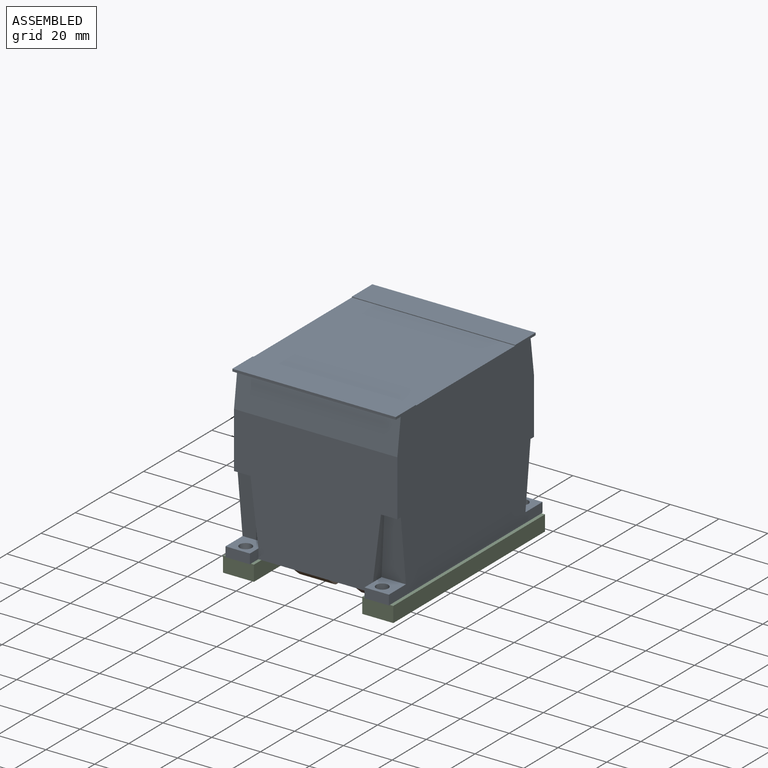
[diagram: assembled view]
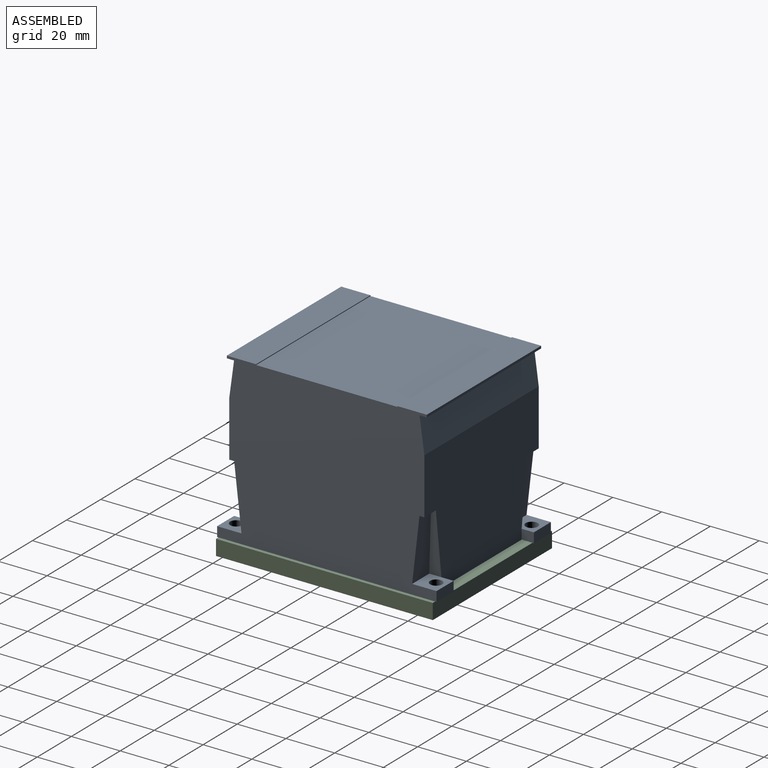
[diagram: assembled view, second angle]
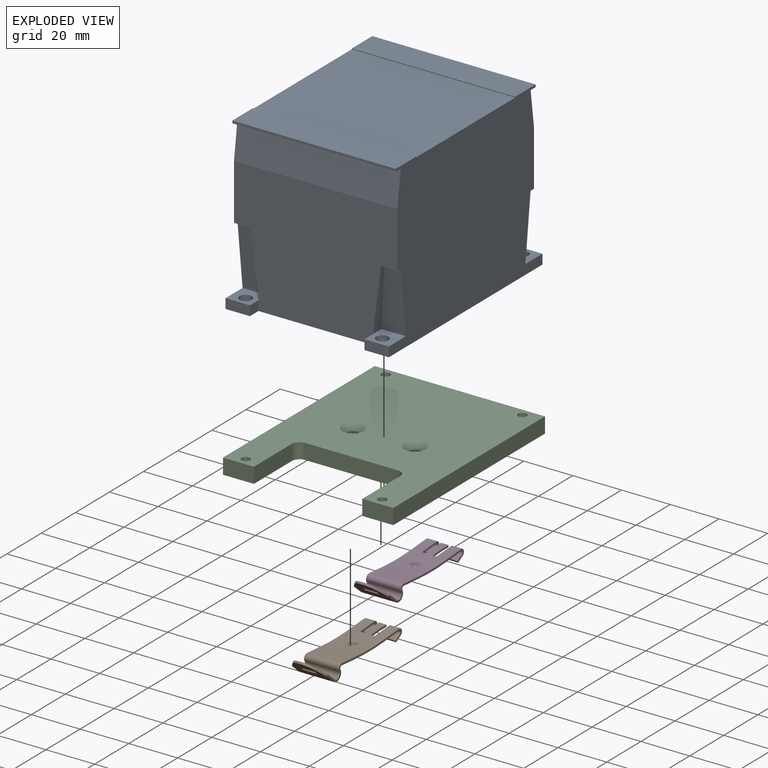
[diagram: exploded view]
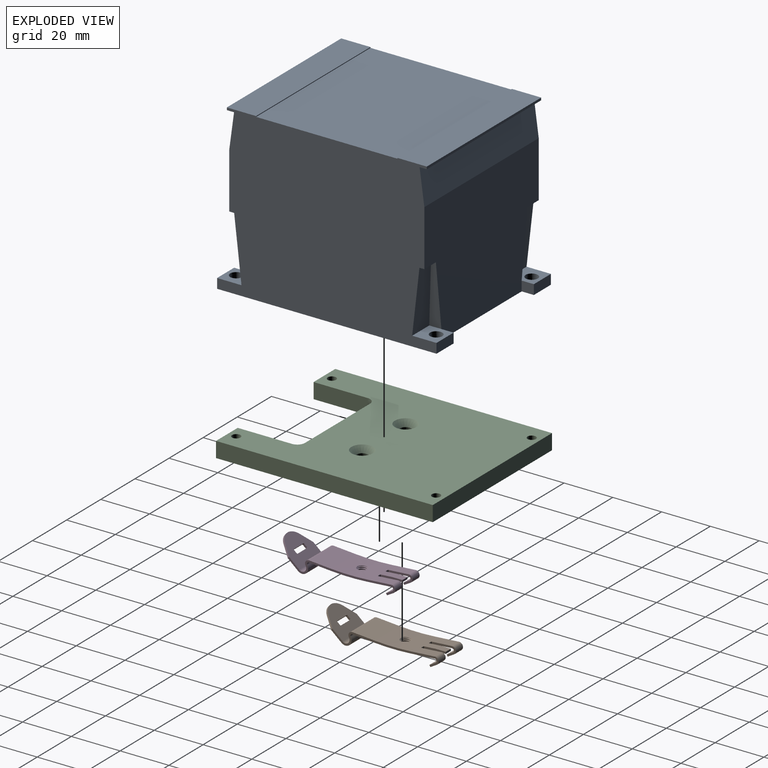
[diagram: exploded view, second angle]
ASSEMBLY  parts=4 mates=3
PART A: 44 faces, bbox 67x90x68.3 mm
  f0: plane 90x67mm, normal (0,0,1), area 5481.5mm2, adj f7,f8,f11,f14,f17,f18,f20,f21
  f1: plane 10x10mm, normal (0,0,-1), area 80.4mm2, adj f5,f8,f17,f26,f31,f35
  f2: plane 10x10mm, normal (0,0,-1), area 80.4mm2, adj f10,f11,f21,f27,f30,f34
  f3: plane 10x10mm, normal (0,0,-1), area 80.4mm2, adj f11,f15,f18,f25,f28,f33
  f4: plane 10x10mm, normal (0,0,-1), area 80.4mm2, adj f8,f13,f20,f24,f29,f32
  f5: plane 26x5mm, normal (-0.99,0,0.12), area 91.7mm2, adj f1,f6,f7,f31
  f6: plane 6.75x2mm, normal (0,0,1), area 13.5mm2, adj f5,f7,f8,f31
  f7: plane 67x53mm, normal (0,1,0), area 3035.5mm2, adj f0,f5,f6,f8,f9,f10,f11,f22
  f8: plane 90x68.3mm, normal (-1,0,0), area 5278.7mm2, adj f0,f1,f4,f6,f7,f12,f14,f17
  f9: plane 6.75x2mm, normal (0,0,1), area 13.5mm2, adj f7,f10,f11,f30
  f10: plane 26x5mm, normal (0.99,0,0.12), area 91.7mm2, adj f2,f7,f9,f30
  f11: plane 90x68.3mm, normal (1,0,0), area 5278.7mm2, adj f0,f2,f3,f7,f9,f14,f16,f18
  f12: plane 6.75x2mm, normal (0,0,1), area 13.5mm2, adj f8,f13,f14,f29
  f13: plane 26x5mm, normal (-0.99,0,0.12), area 91.7mm2, adj f4,f12,f14,f29
  f14: plane 67x53mm, normal (0,-1,0), area 3035.5mm2, adj f0,f8,f11,f12,f13,f15,f16,f19
  f15: plane 26x5mm, normal (0.99,0,0.12), area 91.7mm2, adj f3,f14,f16,f28
  f16: plane 6.75x2mm, normal (0,0,1), area 13.5mm2, adj f11,f14,f15,f28
  f17: plane 10x4mm, normal (0,1,0), area 40mm2, adj f0,f1,f8,f26
  f18: plane 10x4mm, normal (0,-1,0), area 40mm2, adj f0,f3,f11,f25
  f19: plane 67x14.3mm, normal (0,-0.99,-0.14), area 967mm2, adj f8,f11,f14,f38
  f20: plane 10x4mm, normal (0,-1,0), area 40mm2, adj f0,f4,f8,f24
  f21: plane 10x4mm, normal (0,1,0), area 40mm2, adj f0,f2,f11,f27
  f22: plane 67x14.3mm, normal (0,0.99,-0.14), area 967mm2, adj f7,f8,f11,f43
  f23: plane 67x58mm, normal (0,0,-1), area 3886mm2, adj f8,f11,f39,f42
  f24: plane 5x4mm, normal (1,0,0), area 20mm2, adj f0,f4,f14,f20
  f25: plane 5x4mm, normal (-1,0,0), area 20mm2, adj f0,f3,f14,f18
  f26: plane 5x4mm, normal (1,0,0), area 20mm2, adj f0,f1,f7,f17
  f27: plane 5x4mm, normal (-1,0,0), area 20mm2, adj f0,f2,f7,f21
  f28: plane 26x10mm, normal (0,-0.99,0.11), area 219.2mm2, adj f3,f11,f15,f16
  f29: plane 26x10mm, normal (0,-0.99,0.11), area 219.2mm2, adj f4,f8,f12,f13
  f30: plane 26x10mm, normal (0,0.99,0.11), area 219.2mm2, adj f2,f9,f10,f11
  f31: plane 26x10mm, normal (0,0.99,0.11), area 219.2mm2, adj f1,f5,f6,f8
  f32: cylinder r=2.5mm len=5mm, axis (0,0,-1), area 62.8mm2, adj f0,f4
  f33: cylinder r=2.5mm len=5mm, axis (0,0,-1), area 62.8mm2, adj f0,f3
  f34: cylinder r=2.5mm len=5mm, axis (0,0,-1), area 62.8mm2, adj f0,f2
  f35: cylinder r=2.5mm len=5mm, axis (0,0,-1), area 62.8mm2, adj f0,f1
  f36: plane 67x12mm, normal (0,0,-1), area 804mm2, adj f8,f11,f37,f39
  f37: plane 67x1mm, normal (0,-1,0), area 67mm2, adj f8,f11,f36,f38
  f38: plane 67x2.95mm, normal (0,0,1), area 197.9mm2, adj f8,f11,f19,f37
  f39: plane 67x0.3mm, normal (0,1,0), area 20.1mm2, adj f8,f11,f23,f36
  f40: plane 67x1mm, normal (0,1,0), area 67mm2, adj f8,f11,f41,f43
  f41: plane 67x12mm, normal (0,0,-1), area 804mm2, adj f8,f11,f40,f42
  f42: plane 67x0.3mm, normal (0,-1,0), area 20.1mm2, adj f8,f11,f23,f41
  f43: plane 67x2.95mm, normal (0,0,1), area 197.9mm2, adj f8,f11,f22,f40
PART B: 59 faces, bbox 9.9x49.9x14.5 mm
  f0: cone r=2.08mm half-angle=45deg, axis (1,0,0), area 4.6mm2, adj f6,f7,f56,f57,f58
  f1: bspline ~6.97x3.5mm, area 7.8mm2, adj f2,f5,f55
  f2: cylinder r=3mm len=6mm, axis (-1,0,0), area 9.1mm2, adj f1,f8,f55
  f3: cylinder r=1.71mm len=14.3mm, axis (0,0,-1), area 69mm2, adj f16,f17,f18,f26
  f4: cylinder r=2.51mm len=14.3mm, axis (0,0,-1), area 101.3mm2, adj f15,f17,f18,f25
  f5: cylinder r=100.8mm len=14.97mm, axis (0,0,-1), area 176mm2, adj f1,f17,f18,f23,f24,f55
  f6: cylinder r=1.62mm len=3.24mm, axis (1,0,0), area 3.4mm2, adj f0,f8,f57,f58
  f7: cylinder r=100mm len=14.85mm, axis (0,0,-1), area 201.3mm2, adj f0,f17,f18,f27,f28
  f8: plane 6.2x6.2mm, normal (-1,0,0), area 18.2mm2, adj f2,f6,f56,f57,f58
  f9: plane 1x0.8mm, normal (0.07,1,0), area 0.8mm2, adj f23,f28,f53,f54
  f10: plane 4.15x2.6mm, normal (-0.87,0.5,0), area 12.4mm2, adj f11,f14,f17,f37
  f11: plane 4.15x0.69mm, normal (-0.5,-0.87,0), area 3.3mm2, adj f10,f12,f17,f37
  f12: plane 4.15x2.6mm, normal (0.87,-0.5,0), area 12.4mm2, adj f11,f13,f17,f37
  f13: cylinder r=0.75mm len=4.15mm, axis (0,0,-1), area 8.4mm2, adj f12,f17,f23,f37
  f14: cylinder r=1.55mm len=4.15mm, axis (0,0,-1), area 17.3mm2, adj f10,f17,f28,f37
  f15: plane 14.3x9.86mm, normal (-0.76,-0.65,0), area 139.8mm2, adj f4,f17,f18,f30,f31,f32,f33,f34
  f16: plane 14.3x9.86mm, normal (0.76,0.65,0), area 139.8mm2, adj f3,f17,f18,f30,f31,f32,f33,f34
  f17: plane 44.09x5.75mm, normal (0,0,1), area 43.2mm2, adj f3,f4,f5,f7,f10,f11,f12,f13
  f18: plane 44.09x5.75mm, normal (0,0,-1), area 43.2mm2, adj f3,f4,f5,f7,f15,f16,f19,f20
  f19: plane 4.15x2.6mm, normal (-0.87,0.5,0), area 12.4mm2, adj f18,f20,f29,f38
  f20: plane 4.15x0.69mm, normal (-0.5,-0.87,0), area 3.3mm2, adj f18,f19,f21,f38
  f21: plane 4.15x2.6mm, normal (0.87,-0.5,0), area 12.4mm2, adj f18,f20,f22,f38
  f22: cylinder r=0.75mm len=4.15mm, axis (0,0,-1), area 8.4mm2, adj f18,f21,f23,f38
  f23: plane 14.3x9.76mm, normal (-1,0.07,0), area 104.3mm2, adj f5,f9,f13,f17,f18,f22,f37,f38
  f24: plane 14.3x9.03mm, normal (-1,-0.08,0), area 129.5mm2, adj f5,f17,f18,f25
  f25: cylinder r=0.75mm len=14.3mm, axis (0,0,-1), area 23.5mm2, adj f4,f17,f18,f24
  f26: cylinder r=1.55mm len=14.3mm, axis (0,0,-1), area 48.6mm2, adj f3,f17,f18,f27
  f27: plane 14.3x9.03mm, normal (1,0.08,0), area 129.5mm2, adj f7,f17,f18,f26
  f28: plane 14.3x9.76mm, normal (1,-0.07,0), area 104.4mm2, adj f7,f9,f14,f17,f18,f29,f37,f38
  f29: cylinder r=1.55mm len=4.15mm, axis (0,0,-1), area 17.3mm2, adj f18,f19,f28,f38
  f30: cylinder r=5mm len=8.66mm, axis (0.76,0.65,0), area 8.4mm2, adj f15,f16,f31,f32
  f31: plane 4.23x3.79mm, normal (0.33,-0.38,0.87), area 4.5mm2, adj f15,f16,f17,f30
  f32: plane 4.23x3.79mm, normal (0.33,-0.38,-0.87), area 4.5mm2, adj f15,f16,f18,f30
  f33: plane 1.66x1.58mm, normal (0,0,1), area 1.2mm2, adj f15,f16,f47,f48
  f34: plane 5.5x0.61mm, normal (-0.65,0.76,0), area 4.4mm2, adj f15,f16,f48,f49
  f35: plane 1.66x1.58mm, normal (0,0,-1), area 1.2mm2, adj f15,f16,f49,f50
  f36: plane 5.5x0.61mm, normal (0.65,-0.76,0), area 4.4mm2, adj f15,f16,f47,f50
  f37: plane 9.84x4.39mm, normal (0,0,-1), area 11.4mm2, adj f10,f11,f12,f13,f14,f23,f28,f51
  f38: plane 9.84x4.39mm, normal (0,0,1), area 11.4mm2, adj f19,f20,f21,f22,f23,f28,f29,f54
  f39: plane 1x0.8mm, normal (0.07,1,0), area 0.8mm2, adj f23,f28,f51,f52
  f40: plane 4.05x3mm, normal (1,0,0), area 12.1mm2, adj f41,f43,f44,f46
  f41: plane 3x0.8mm, normal (0,1,0), area 2.4mm2, adj f40,f42,f43,f44
  f42: plane 4.02x3mm, normal (-1,0,0), area 12.1mm2, adj f41,f43,f44,f45
  f43: plane 8.84x1.14mm, normal (0,0,1), area 7.1mm2, adj f23,f28,f40,f41,f42,f45,f46,f52
  f44: plane 8.84x1.14mm, normal (0,0,-1), area 7.1mm2, adj f23,f28,f40,f41,f42,f45,f46,f53
  f45: cylinder r=0.25mm len=3mm, axis (0,0,1), area 0.1mm2, adj f23,f42,f43,f44
  f46: cylinder r=0.25mm len=3mm, axis (0,0,-1), area 0.1mm2, adj f28,f40,f43,f44
  f47: cylinder r=0.25mm len=0.77mm, axis (-0.76,-0.65,0), area 0.3mm2, adj f15,f16,f33,f36
  f48: cylinder r=0.25mm len=0.77mm, axis (-0.76,-0.65,0), area 0.3mm2, adj f15,f16,f33,f34
  f49: cylinder r=0.25mm len=0.77mm, axis (-0.76,-0.65,0), area 0.3mm2, adj f15,f16,f34,f35
  f50: cylinder r=0.25mm len=0.77mm, axis (-0.76,-0.65,0), area 0.3mm2, adj f15,f16,f35,f36
  f51: cylinder r=0.25mm len=0.82mm, axis (-1,0.07,0), area 0.3mm2, adj f23,f28,f37,f39
  f52: cylinder r=0.25mm len=0.82mm, axis (1,-0.07,0), area 0.3mm2, adj f23,f28,f39,f43
  f53: cylinder r=0.25mm len=0.82mm, axis (-1,0.07,0), area 0.3mm2, adj f9,f23,f28,f44
  f54: cylinder r=0.25mm len=0.82mm, axis (-1,0.07,0), area 0.3mm2, adj f9,f23,f28,f38
  f55: bspline ~6.97x3.5mm, area 7.8mm2, adj f1,f2,f5
  f56: cylinder r=2mm len=4mm, axis (1,0,0), area 2.7mm2, adj f0,f8,f57,f58
  f57: bspline ~4.62x4mm, area 11.2mm2, adj f0,f6,f8,f56
  f58: bspline ~4.62x4mm, area 10.8mm2, adj f0,f6,f8,f56
PART C: 20 faces, bbox 69.9x88.9x6.4 mm
  f0: plane 12.7x6.35mm, normal (0,-1,0), area 80.6mm2, adj f1,f2,f4,f15
  f1: plane 88.9x69.85mm, normal (0,0,-1), area 5015.7mm2, adj f0,f3,f4,f5,f6,f7,f9,f11
  f2: plane 88.9x69.85mm, normal (0,0,1), area 4921.4mm2, adj f0,f3,f4,f5,f6,f8,f10,f11
  f3: plane 69.85x6.35mm, normal (0,1,0), area 443.5mm2, adj f1,f2,f4,f6
  f4: plane 88.9x6.35mm, normal (-1,0,0), area 564.5mm2, adj f0,f1,f2,f3
  f5: plane 12.7x6.35mm, normal (0,-1,0), area 80.6mm2, adj f1,f2,f6,f16
  f6: plane 88.9x6.35mm, normal (1,0,0), area 564.5mm2, adj f1,f2,f3,f5
  f7: cylinder r=2.25mm len=4.5mm, axis (0,0,1), area 58.2mm2, adj f1,f8
  f8: cone r=2.25mm half-angle=45deg, axis (0,0,1), area 66.7mm2, adj f2,f7
  f9: cylinder r=2.25mm len=4.5mm, axis (0,0,1), area 58.2mm2, adj f1,f10
  f10: cone r=2.25mm half-angle=45deg, axis (0,0,1), area 66.7mm2, adj f2,f9
  f11: cylinder r=1.73mm len=6.35mm, axis (0,0,1), area 68.9mm2, adj f1,f2
  f12: cylinder r=1.73mm len=6.35mm, axis (0,0,1), area 68.9mm2, adj f1,f2
  f13: cylinder r=1.73mm len=6.35mm, axis (0,0,1), area 68.9mm2, adj f1,f2
  f14: cylinder r=1.73mm len=6.35mm, axis (0,0,1), area 68.9mm2, adj f1,f2
  f15: plane 22.23x6.35mm, normal (1,0,0), area 141.1mm2, adj f0,f1,f2,f19
  f16: plane 22.23x6.35mm, normal (-1,0,0), area 141.1mm2, adj f1,f2,f5,f17
  f17: cylinder r=3.17mm len=6.35mm, axis (0,0,1), area 31.7mm2, adj f1,f2,f16,f18
  f18: plane 38.1x6.35mm, normal (0,-1,0), area 241.9mm2, adj f1,f2,f17,f19
  f19: cylinder r=3.17mm len=6.35mm, axis (0,0,1), area 31.7mm2, adj f1,f2,f15,f18
PART D: same geometry as B
PLACE A rot(axis=(0,1,0),180deg) t=(-2.75,-3.71,-0.8)mm
PLACE B rot(axis=(0,-1,0),90deg) t=(-15.45,-3.71,-15.72)mm
PLACE C t=(-2.75,-3.71,-0.8)mm
PLACE D rot(axis=(0,-1,0),90deg) t=(9.95,-3.71,-15.72)mm
MATE fastened A.f34 <-> C.f11  axis (0,0,-1) through (-30.75,37.29,-0.8)mm
MATE fastened D.f6 <-> C.f7  axis (0,0,-1) through (9.95,-3.71,-7.15)mm
MATE fastened B.f6 <-> C.f9  axis (0,0,-1) through (-15.45,-3.71,-7.15)mm
